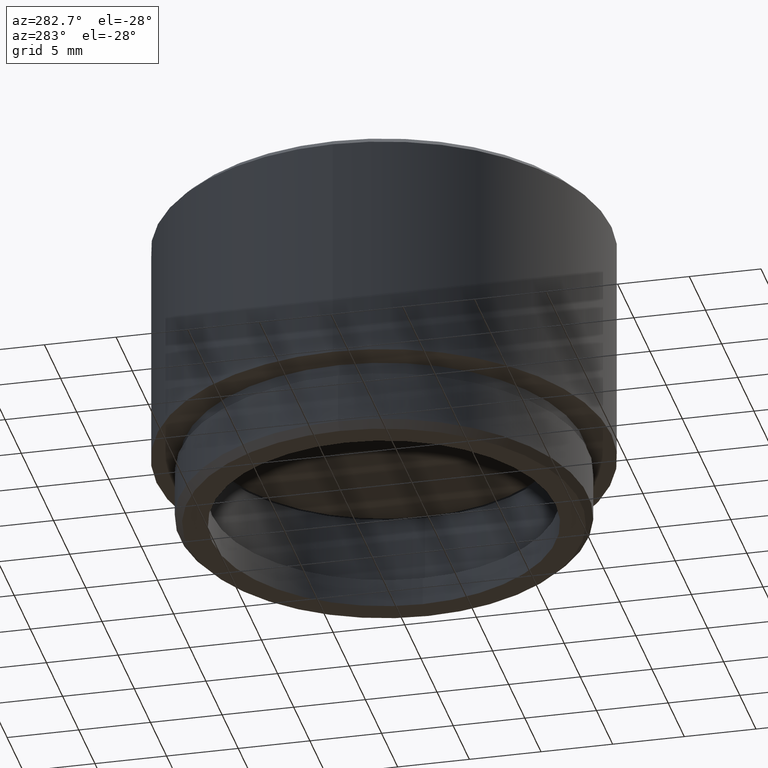
[diagram: clean part render]
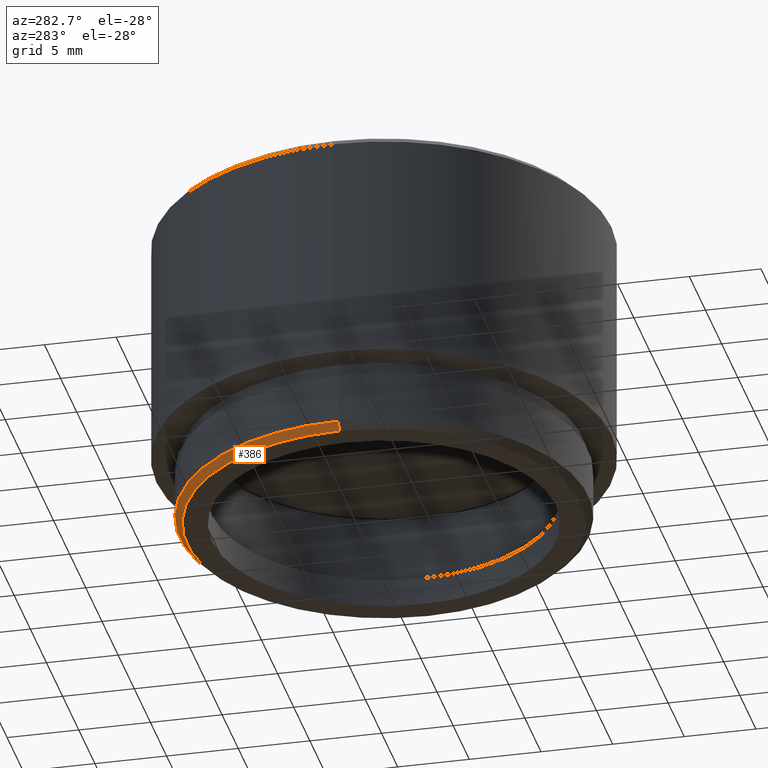
[diagram: same view with one face highlighted and labeled with its STEP entity id]
A machine part, auxiliary view. The second image highlights one B-rep face of the part: STEP entity #386.
In plain terms, the highlighted conical surface has half-angle 45 deg.
Its self-contained STEP definition (entity closure, byte-faithful):
#28 = EDGE_LOOP ( 'NONE', ( #1387, #895, #1022, #260 ) ) ;
#51 = CARTESIAN_POINT ( 'NONE',  ( 0.000000000000000000, 0.000000000000000000, 0.5000000000000038858 ) ) ;
#65 = DIRECTION ( 'NONE',  ( 0.000000000000000000, 0.000000000000000000, 1.000000000000000000 ) ) ;
#90 = CARTESIAN_POINT ( 'NONE',  ( 0.000000000000000000, 0.000000000000000000, 0.000000000000000000 ) ) ;
#185 = CARTESIAN_POINT ( 'NONE',  ( -14.25000000000000000, 0.000000000000000000, 0.5000000000000038858 ) ) ;
#260 = ORIENTED_EDGE ( 'NONE', *, *, #1323, .F. ) ;
#276 = VERTEX_POINT ( 'NONE', #997 ) ;
#382 = DIRECTION ( 'NONE',  ( 0.000000000000000000, 0.000000000000000000, 1.000000000000000000 ) ) ;
#386 = ADVANCED_FACE ( 'NONE', ( #1269 ), #1652, .T. ) ;
#520 = VECTOR ( 'NONE', #1111, 1000.000000000000000 ) ;
#537 = CIRCLE ( 'NONE', #1492, 13.74999999999999112 ) ;
#565 = VERTEX_POINT ( 'NONE', #1281 ) ;
#595 = CARTESIAN_POINT ( 'NONE',  ( -13.74999999999999112, 1.683889348827609668E-15, 0.000000000000000000 ) ) ;
#630 = VECTOR ( 'NONE', #1395, 1000.000000000000000 ) ;
#651 = DIRECTION ( 'NONE',  ( 1.000000000000000000, 0.000000000000000000, 0.000000000000000000 ) ) ;
#703 = CARTESIAN_POINT ( 'NONE',  ( -13.74999999999999112, 1.714505518806294046E-15, 0.000000000000000000 ) ) ;
#895 = ORIENTED_EDGE ( 'NONE', *, *, #1702, .T. ) ;
#997 = CARTESIAN_POINT ( 'NONE',  ( 13.74999999999999112, 0.000000000000000000, 0.000000000000000000 ) ) ;
#1022 = ORIENTED_EDGE ( 'NONE', *, *, #1688, .F. ) ;
#1044 = AXIS2_PLACEMENT_3D ( 'NONE', #90, #382, #651 ) ;
#1051 = DIRECTION ( 'NONE',  ( -0.000000000000000000, -0.000000000000000000, -1.000000000000000000 ) ) ;
#1075 = EDGE_CURVE ( 'NONE', #1595, #276, #537, .T. ) ;
#1101 = DIRECTION ( 'NONE',  ( 1.000000000000000000, 0.000000000000000000, 0.000000000000000000 ) ) ;
#1111 = DIRECTION ( 'NONE',  ( -0.7071067811865512365, 8.659560562354978464E-17, 0.7071067811865439090 ) ) ;
#1242 = VERTEX_POINT ( 'NONE', #185 ) ;
#1250 = CIRCLE ( 'NONE', #1504, 14.25000000000000000 ) ;
#1269 = FACE_OUTER_BOUND ( 'NONE', #28, .T. ) ;
#1281 = CARTESIAN_POINT ( 'NONE',  ( 14.25000000000000000, 1.745121688784978228E-15, 0.5000000000000038858 ) ) ;
#1323 = EDGE_CURVE ( 'NONE', #276, #565, #1410, .T. ) ;
#1328 = CARTESIAN_POINT ( 'NONE',  ( 0.000000000000000000, 0.000000000000000000, 0.000000000000000000 ) ) ;
#1387 = ORIENTED_EDGE ( 'NONE', *, *, #1075, .F. ) ;
#1395 = DIRECTION ( 'NONE',  ( 0.7071067811865512365, 0.000000000000000000, 0.7071067811865439090 ) ) ;
#1410 = LINE ( 'NONE', #1539, #630 ) ;
#1492 = AXIS2_PLACEMENT_3D ( 'NONE', #1328, #1051, #1703 ) ;
#1502 = LINE ( 'NONE', #595, #520 ) ;
#1504 = AXIS2_PLACEMENT_3D ( 'NONE', #51, #65, #1101 ) ;
#1539 = CARTESIAN_POINT ( 'NONE',  ( 13.74999999999999112, 0.000000000000000000, 0.000000000000000000 ) ) ;
#1595 = VERTEX_POINT ( 'NONE', #703 ) ;
#1652 = CONICAL_SURFACE ( 'NONE', #1044, 13.74999999999999112, 0.7853981633974533860 ) ;
#1688 = EDGE_CURVE ( 'NONE', #565, #1242, #1250, .T. ) ;
#1702 = EDGE_CURVE ( 'NONE', #1595, #1242, #1502, .T. ) ;
#1703 = DIRECTION ( 'NONE',  ( 1.000000000000000000, 0.000000000000000000, 0.000000000000000000 ) ) ;